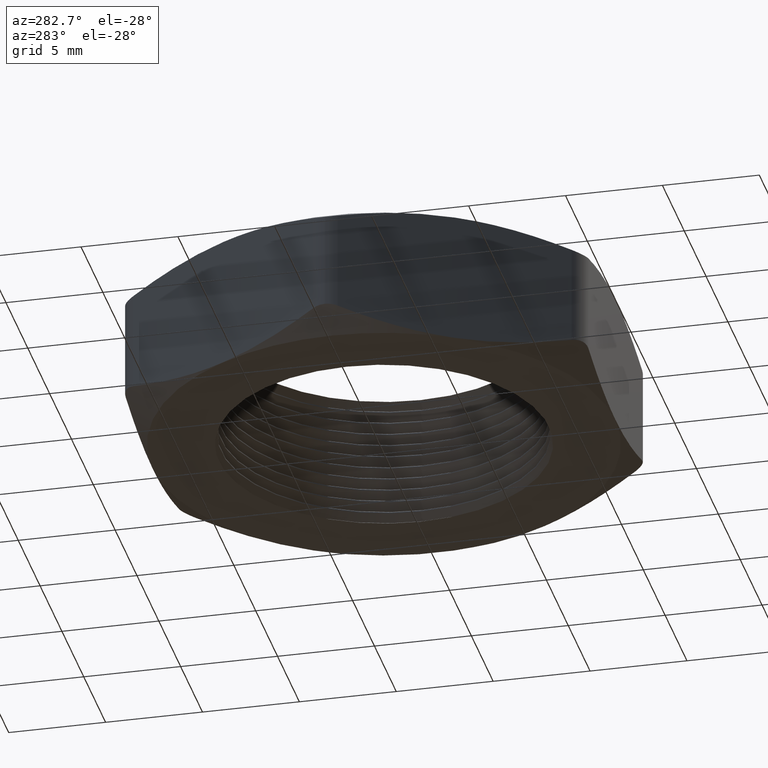
[diagram: clean part render]
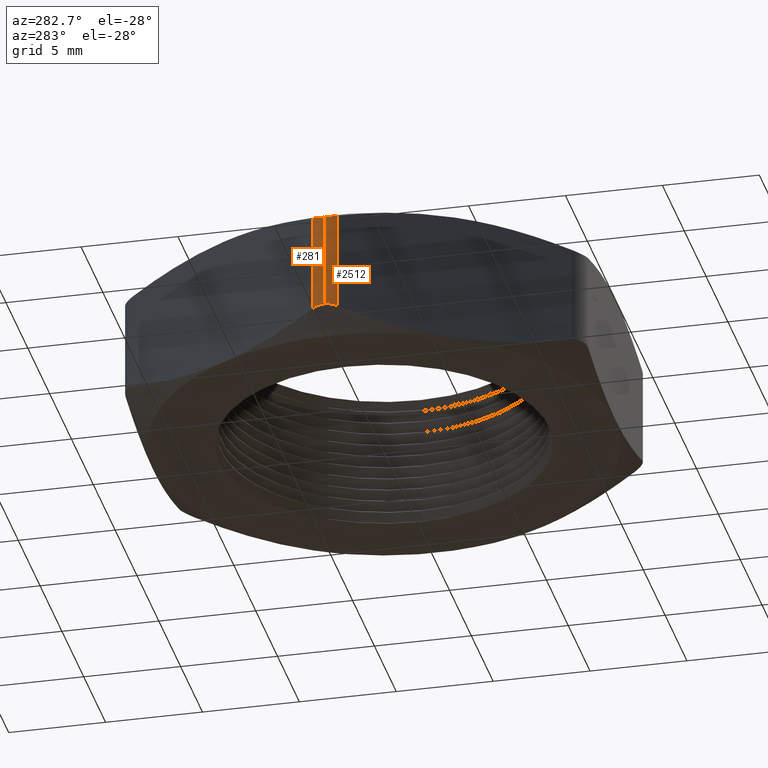
[diagram: same view with one multi-face feature highlighted, each face labeled with its STEP entity id]
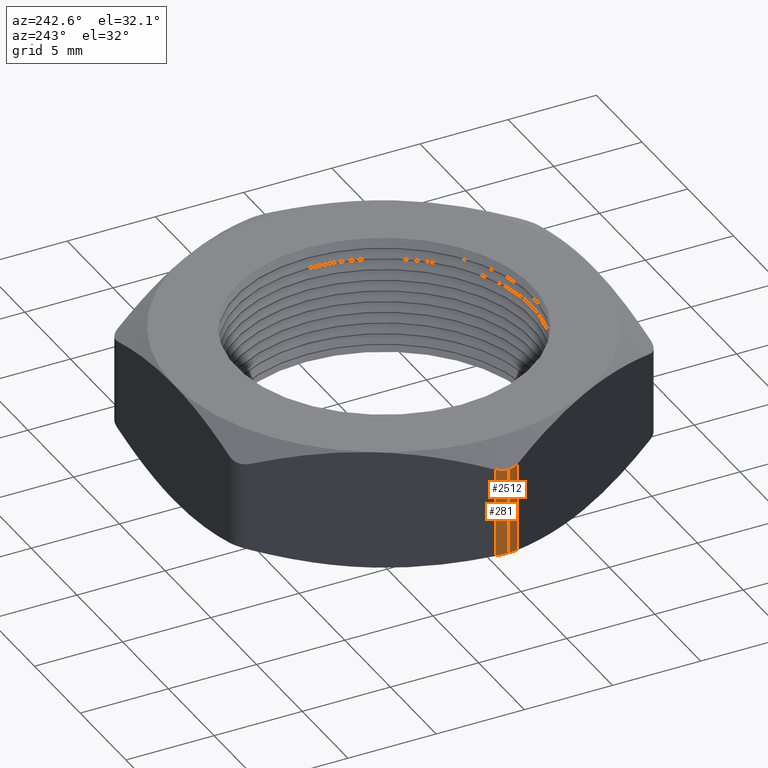
[diagram: same view with one multi-face feature highlighted, each face labeled with its STEP entity id]
A machine part, auxiliary view. The highlighted faces form ONE feature: a constant-radius fillet chain: 2 tangent blend faces with common blend radius 1.27 mm. The faces share edges in the B-rep.
A second angle (auxiliary view) of the same feature is appended — it is thin or edge-on in the first view.
Their STEP definitions:
[1] entity #2512 (Cylinder):
#297 = EDGE_CURVE ( 'NONE', #2497, #332, #1197, .T. ) ;
#327 = ORIENTED_EDGE ( 'NONE', *, *, #351, .F. ) ;
#332 = VERTEX_POINT ( 'NONE', #1217 ) ;
#342 = ORIENTED_EDGE ( 'NONE', *, *, #297, .F. ) ;
#351 = EDGE_CURVE ( 'NONE', #332, #2505, #1285, .T. ) ;
#381 = VERTEX_POINT ( 'NONE', #1350 ) ;
#1191 = DIRECTION ( 'NONE',  ( 0.0000000000000000000, 0.0000000000000000000, -1.000000000000000000 ) ) ;
#1192 = VECTOR ( 'NONE', #1191, 39.37007874015748100 ) ;
#1193 = CARTESIAN_POINT ( 'NONE',  ( -0.5282754963085076700, -0.02499999999999982400, 0.2700000000000000200 ) ) ;
#1197 = LINE ( 'NONE', #1193, #1192 ) ;
#1217 = CARTESIAN_POINT ( 'NONE',  ( -0.5282754963085076700, -0.02499999999999982800, 0.03398671253167197300 ) ) ;
#1276 = CARTESIAN_POINT ( 'NONE',  ( -0.5349742261194081500, 1.394389012601796100E-014, 0.03751288694042104900 ) ) ;
#1277 = CARTESIAN_POINT ( 'NONE',  ( -0.5349742261192880200, -0.004405960755446827100, 0.03751288694035816900 ) ) ;
#1278 = CARTESIAN_POINT ( 'NONE',  ( -0.5343858462687715000, -0.008817654417964304900, 0.03720536748727289900 ) ) ;
#1279 = CARTESIAN_POINT ( 'NONE',  ( -0.5320943321481713700, -0.01729031066980241100, 0.03600247259585453300 ) ) ;
#1280 = CARTESIAN_POINT ( 'NONE',  ( -0.5304300987953647400, -0.02126811902264884000, 0.03512743226619012600 ) ) ;
#1281 = CARTESIAN_POINT ( 'NONE',  ( -0.5282754963085076700, -0.02499999999999982800, 0.03398671253167197300 ) ) ;
#1285 = B_SPLINE_CURVE_WITH_KNOTS ( 'NONE', 3,
 ( #1281, #1280, #1279, #1278, #1277, #1276 ),
 .UNSPECIFIED., .F., .F.,
 ( 4, 2, 4 ),
 ( 3.428548309156934800E-019, 0.0003351501802894018300, 0.0006703003605788033400 ),
 .UNSPECIFIED. ) ;
#1350 = CARTESIAN_POINT ( 'NONE',  ( -0.5349742261194081500, -1.380729774261783100E-014, 0.2324871130595789800 ) ) ;
#1869 = CARTESIAN_POINT ( 'NONE',  ( -0.5282754963085006800, -0.02500000000001194700, 0.2360132874683318900 ) ) ;
#1870 = CARTESIAN_POINT ( 'NONE',  ( -0.5304237173392520900, -0.02127917202886648100, 0.2348759462934130500 ) ) ;
#1871 = CARTESIAN_POINT ( 'NONE',  ( -0.5321149342017713600, -0.01722339589642606400, 0.2339867053256982900 ) ) ;
#1872 = CARTESIAN_POINT ( 'NONE',  ( -0.5343797967742158800, -0.008830702858995856400, 0.2327978154977825600 ) ) ;
#1873 = CARTESIAN_POINT ( 'NONE',  ( -0.5349742261192835800, -0.004391506653093698800, 0.2324871130596440600 ) ) ;
#1874 = CARTESIAN_POINT ( 'NONE',  ( -0.5349742261194081500, -1.380729774261783100E-014, 0.2324871130595789800 ) ) ;
#1876 = B_SPLINE_CURVE_WITH_KNOTS ( 'NONE', 3,
 ( #1874, #1873, #1872, #1871, #1870, #1869 ),
 .UNSPECIFIED., .F., .F.,
 ( 4, 2, 4 ),
 ( 0.0006703003605788072400, 0.001004351054219414700, 0.001338401747860021900 ),
 .UNSPECIFIED. ) ;
#1881 = CARTESIAN_POINT ( 'NONE',  ( -0.5282754963085006800, -0.02500000000001194700, 0.2360132874683318900 ) ) ;
#1893 = FACE_OUTER_BOUND ( 'NONE', #2492, .T. ) ;
#1907 = DIRECTION ( 'NONE',  ( 0.0000000000000000000, 0.0000000000000000000, -1.000000000000000000 ) ) ;
#1908 = VECTOR ( 'NONE', #1907, 39.37007874015748100 ) ;
#1909 = CARTESIAN_POINT ( 'NONE',  ( -0.5349742261192858000, 1.365923996832131600E-016, 0.2700000000000000200 ) ) ;
#1910 = LINE ( 'NONE', #1909, #1908 ) ;
#1916 = CARTESIAN_POINT ( 'NONE',  ( -0.5349742261194081500, 1.394389012601796100E-014, 0.03751288694042104900 ) ) ;
#1952 = DIRECTION ( 'NONE',  ( -1.000000000000000000, 0.0000000000000000000, 0.0000000000000000000 ) ) ;
#1953 = DIRECTION ( 'NONE',  ( 0.0000000000000000000, 0.0000000000000000000, -1.000000000000000000 ) ) ;
#1954 = CARTESIAN_POINT ( 'NONE',  ( -0.4849742261192858100, 1.365923996832131600E-016, 0.2700000000000000200 ) ) ;
#1955 = AXIS2_PLACEMENT_3D ( 'NONE', #1954, #1953, #1952 ) ;
#1956 = CYLINDRICAL_SURFACE ( 'NONE', #1955, 0.05000000000000001000 ) ;
#2492 = EDGE_LOOP ( 'NONE', ( #2498, #2514, #327, #342 ) ) ;
#2497 = VERTEX_POINT ( 'NONE', #1881 ) ;
#2498 = ORIENTED_EDGE ( 'NONE', *, *, #2500, .F. ) ;
#2500 = EDGE_CURVE ( 'NONE', #381, #2497, #1876, .T. ) ;
#2505 = VERTEX_POINT ( 'NONE', #1916 ) ;
#2507 = EDGE_CURVE ( 'NONE', #381, #2505, #1910, .T. ) ;
#2512 = ADVANCED_FACE ( 'NONE', ( #1893 ), #1956, .T. ) ;
#2514 = ORIENTED_EDGE ( 'NONE', *, *, #2507, .T. ) ;
[2] entity #281 (Cylinder):
#134 = EDGE_CURVE ( 'NONE', #329, #137, #806, .T. ) ;
#137 = VERTEX_POINT ( 'NONE', #796 ) ;
#263 = EDGE_CURVE ( 'NONE', #137, #381, #1127, .T. ) ;
#281 = ADVANCED_FACE ( 'NONE', ( #1206 ), #1205, .T. ) ;
#294 = ORIENTED_EDGE ( 'NONE', *, *, #134, .F. ) ;
#295 = ORIENTED_EDGE ( 'NONE', *, *, #333, .F. ) ;
#299 = ORIENTED_EDGE ( 'NONE', *, *, #263, .F. ) ;
#300 = EDGE_LOOP ( 'NONE', ( #301, #299, #294, #295 ) ) ;
#301 = ORIENTED_EDGE ( 'NONE', *, *, #2507, .F. ) ;
#329 = VERTEX_POINT ( 'NONE', #1220 ) ;
#333 = EDGE_CURVE ( 'NONE', #2505, #329, #1215, .T. ) ;
#381 = VERTEX_POINT ( 'NONE', #1350 ) ;
#709 = CARTESIAN_POINT ( 'NONE',  ( -0.5304237173392661900, 0.02127917202883548500, 0.03512405370659450700 ) ) ;
#711 = CARTESIAN_POINT ( 'NONE',  ( -0.5282754963085146700, 0.02499999999998797600, 0.03398671253167558100 ) ) ;
#796 = CARTESIAN_POINT ( 'NONE',  ( -0.5282754963085076700, 0.02500000000000004600, 0.2360132874683280000 ) ) ;
#803 = DIRECTION ( 'NONE',  ( 0.0000000000000000000, 0.0000000000000000000, 1.000000000000000000 ) ) ;
#804 = VECTOR ( 'NONE', #803, 39.37007874015748100 ) ;
#805 = CARTESIAN_POINT ( 'NONE',  ( -0.5282754963085076700, 0.02500000000000007400, 0.2700000000000000200 ) ) ;
#806 = LINE ( 'NONE', #805, #804 ) ;
#942 = CARTESIAN_POINT ( 'NONE',  ( -0.5349742261194081500, 1.394389012601796100E-014, 0.03751288694042104900 ) ) ;
#944 = CARTESIAN_POINT ( 'NONE',  ( -0.5349742261192834700, 0.004391506653089038500, 0.03751288694035594800 ) ) ;
#946 = CARTESIAN_POINT ( 'NONE',  ( -0.5321149342017773600, 0.01722339589640829000, 0.03601329467430494600 ) ) ;
#947 = CARTESIAN_POINT ( 'NONE',  ( -0.5343797967742171000, 0.008830702858986480200, 0.03720218450221805800 ) ) ;
#1120 = CARTESIAN_POINT ( 'NONE',  ( -0.5349742261194081500, -1.380729774261783100E-014, 0.2324871130595789800 ) ) ;
#1121 = CARTESIAN_POINT ( 'NONE',  ( -0.5349742261192880200, 0.004405960755446972800, 0.2324871130596418700 ) ) ;
#1122 = CARTESIAN_POINT ( 'NONE',  ( -0.5343858462687715000, 0.008817654417964490600, 0.2327946325127271100 ) ) ;
#1123 = CARTESIAN_POINT ( 'NONE',  ( -0.5320943321481713700, 0.01729031066980264000, 0.2339975274041455300 ) ) ;
#1124 = CARTESIAN_POINT ( 'NONE',  ( -0.5304300987953647400, 0.02126811902264910700, 0.2348725677338098200 ) ) ;
#1125 = CARTESIAN_POINT ( 'NONE',  ( -0.5282754963085076700, 0.02500000000000004600, 0.2360132874683280000 ) ) ;
#1127 = B_SPLINE_CURVE_WITH_KNOTS ( 'NONE', 3,
 ( #1125, #1124, #1123, #1122, #1121, #1120 ),
 .UNSPECIFIED., .F., .F.,
 ( 4, 2, 4 ),
 ( 1.192622389734054900E-018, 0.0003351501802894042200, 0.0006703003605788072400 ),
 .UNSPECIFIED. ) ;
#1200 = DIRECTION ( 'NONE',  ( -1.000000000000000000, 0.0000000000000000000, 0.0000000000000000000 ) ) ;
#1201 = DIRECTION ( 'NONE',  ( 0.0000000000000000000, 0.0000000000000000000, -1.000000000000000000 ) ) ;
#1202 = CARTESIAN_POINT ( 'NONE',  ( -0.4849742261192858100, 1.365923996832131600E-016, 0.2700000000000000200 ) ) ;
#1203 = AXIS2_PLACEMENT_3D ( 'NONE', #1202, #1201, #1200 ) ;
#1205 = CYLINDRICAL_SURFACE ( 'NONE', #1203, 0.05000000000000001000 ) ;
#1206 = FACE_OUTER_BOUND ( 'NONE', #300, .T. ) ;
#1215 = B_SPLINE_CURVE_WITH_KNOTS ( 'NONE', 3,
 ( #942, #944, #947, #946, #709, #711 ),
 .UNSPECIFIED., .F., .F.,
 ( 4, 2, 4 ),
 ( 0.0006703003605788033400, 0.001004351054219046900, 0.001338401747859290500 ),
 .UNSPECIFIED. ) ;
#1220 = CARTESIAN_POINT ( 'NONE',  ( -0.5282754963085146700, 0.02499999999998797600, 0.03398671253167558100 ) ) ;
#1350 = CARTESIAN_POINT ( 'NONE',  ( -0.5349742261194081500, -1.380729774261783100E-014, 0.2324871130595789800 ) ) ;
#1907 = DIRECTION ( 'NONE',  ( 0.0000000000000000000, 0.0000000000000000000, -1.000000000000000000 ) ) ;
#1908 = VECTOR ( 'NONE', #1907, 39.37007874015748100 ) ;
#1909 = CARTESIAN_POINT ( 'NONE',  ( -0.5349742261192858000, 1.365923996832131600E-016, 0.2700000000000000200 ) ) ;
#1910 = LINE ( 'NONE', #1909, #1908 ) ;
#1916 = CARTESIAN_POINT ( 'NONE',  ( -0.5349742261194081500, 1.394389012601796100E-014, 0.03751288694042104900 ) ) ;
#2505 = VERTEX_POINT ( 'NONE', #1916 ) ;
#2507 = EDGE_CURVE ( 'NONE', #381, #2505, #1910, .T. ) ;